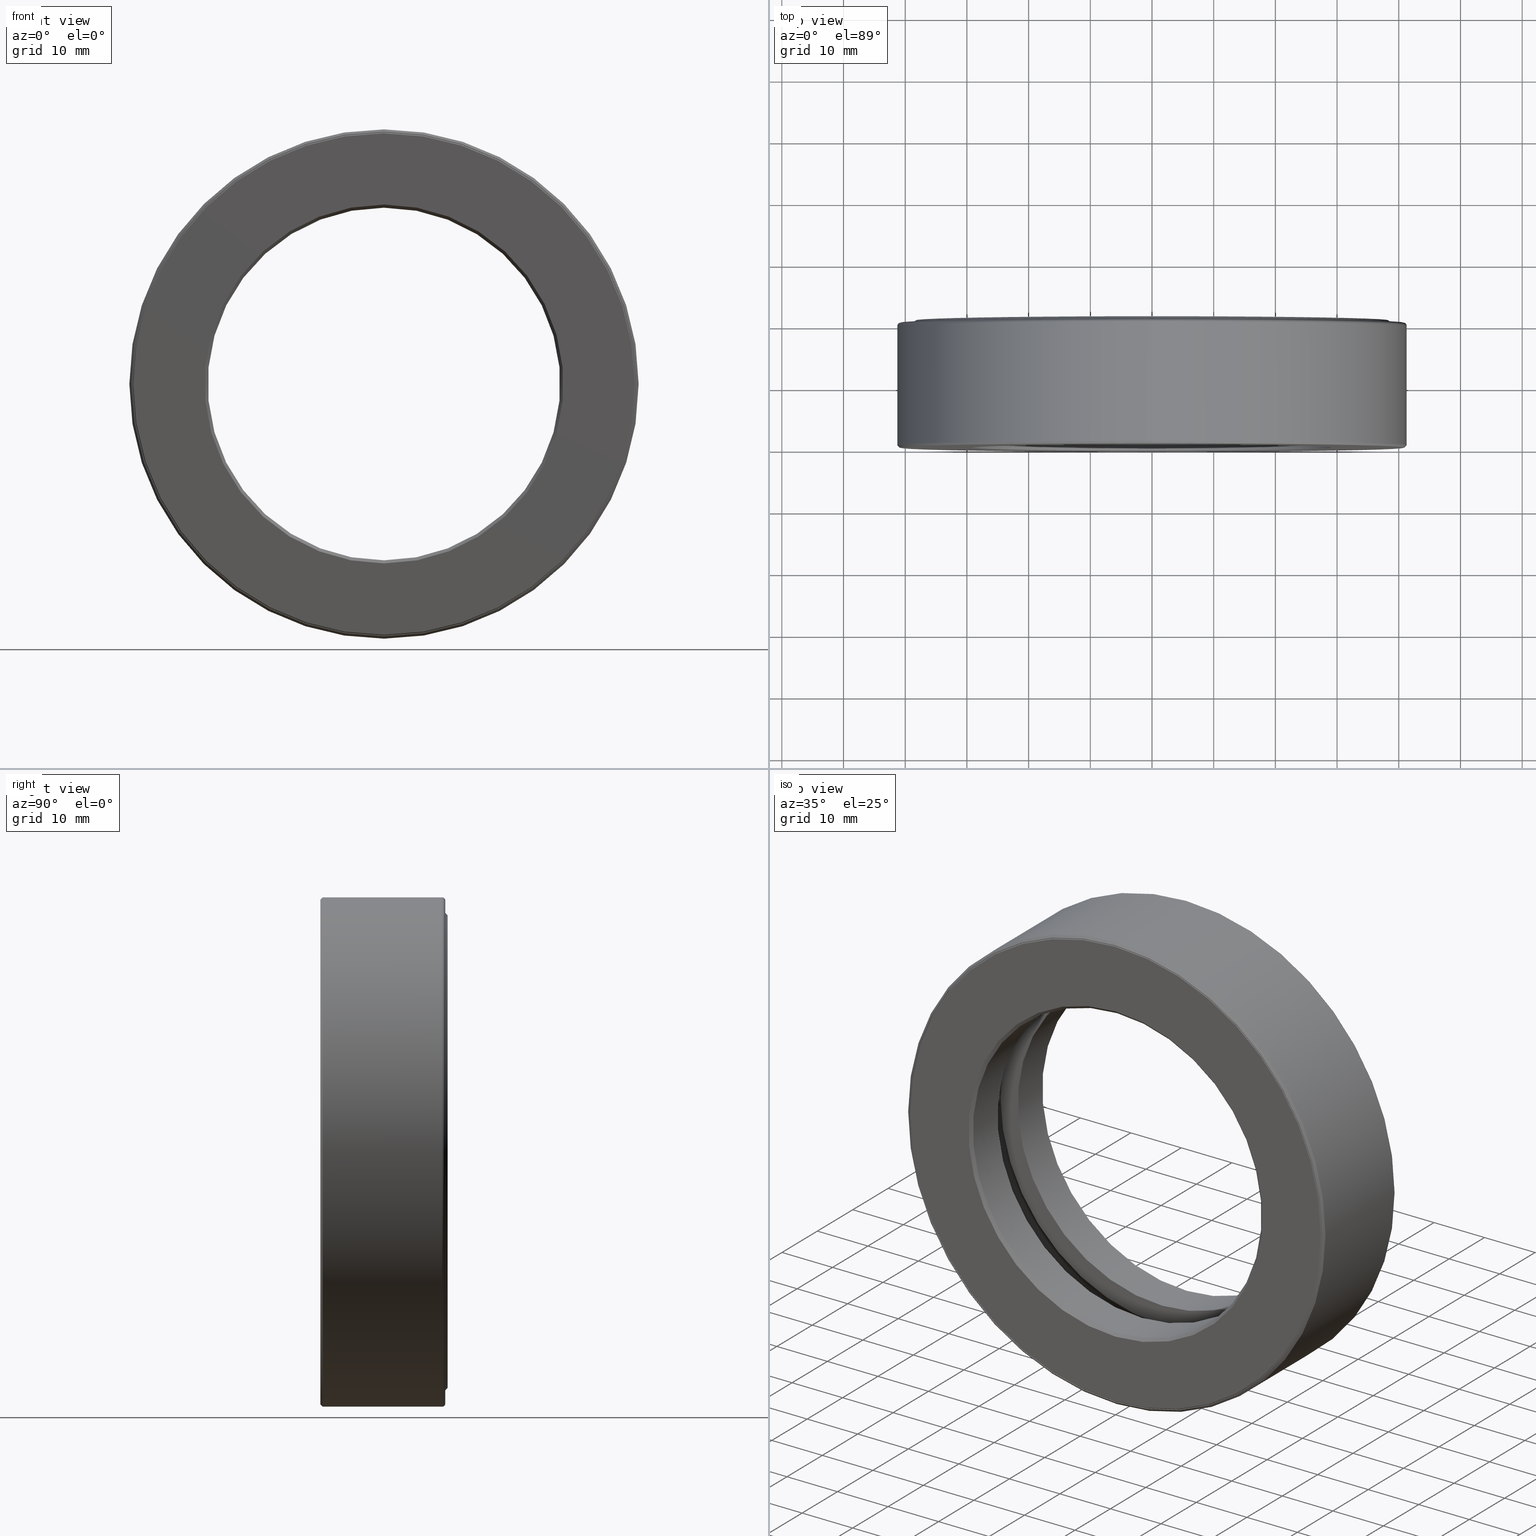
[diagram: canonical four-view strip — front | top / right | iso, engineering-drawing reading convention]
A machine part, canonical four-view strip (front | top / right | iso — engineering-drawing reading convention). The complete STEP part file that produces these views, byte-faithful:
ISO-10303-21;
HEADER;
FILE_DESCRIPTION (( 'STEP AP203' ),
    '1' );
FILE_NAME ('T-100-35.step',
    '2016-06-29T18:27:32',
    ( '' ),
    ( '' ),
    'SwSTEP 2.0',
    'SolidWorks 2016',
    '' );
FILE_SCHEMA (( 'CONFIG_CONTROL_DESIGN' ));
ENDSEC;

DATA;
#1 = DIRECTION ( 'NONE',  ( -0.0000000000000000000, 1.000000000000000000, -0.0000000000000000000 ) ) ;
#2 = CARTESIAN_POINT ( 'NONE',  ( 0.0000000000000000000, 0.7774999999999998600, 1.605000000000000000 ) ) ;
#3 = DIRECTION ( 'NONE',  ( -0.0000000000000000000, 1.000000000000000000, -0.0000000000000000000 ) ) ;
#4 = CC_DESIGN_APPROVAL ( #454, ( #123 ) ) ;
#5 = FACE_BOUND ( 'NONE', #363, .T. ) ;
#6 = CARTESIAN_POINT ( 'NONE',  ( 0.0000000000000000000, 0.7974999999999998800, 0.0000000000000000000 ) ) ;
#7 = FACE_BOUND ( 'NONE', #321, .T. ) ;
#8 = ORIENTED_EDGE ( 'NONE', *, *, #42, .F. ) ;
#9 = DIRECTION ( 'NONE',  ( -0.0000000000000000000, 1.000000000000000000, -0.0000000000000000000 ) ) ;
#10 = AXIS2_PLACEMENT_3D ( 'NONE', #455, #587, #229 ) ;
#11 = LOCAL_TIME ( 14, 27, 32.00000000000000000, #131 ) ;
#12 = CIRCLE ( 'NONE', #298, 1.545000000000000200 ) ;
#13 = FACE_OUTER_BOUND ( 'NONE', #119, .T. ) ;
#14 = ORIENTED_EDGE ( 'NONE', *, *, #275, .T. ) ;
#15 = AXIS2_PLACEMENT_3D ( 'NONE', #279, #506, #127 ) ;
#16 = DESIGN_CONTEXT ( 'detailed design', #518, 'design' ) ;
#17 = FACE_OUTER_BOUND ( 'NONE', #563, .T. ) ;
#18 = FACE_BOUND ( 'NONE', #251, .T. ) ;
#19 = AXIS2_PLACEMENT_3D ( 'NONE', #535, #496, #117 ) ;
#20 = ORIENTED_EDGE ( 'NONE', *, *, #260, .T. ) ;
#21 = ADVANCED_FACE ( 'NONE', ( #234, #305 ), #599, .T. ) ;
#22 = PERSON_AND_ORGANIZATION ( #97, #383 ) ;
#23 = DIRECTION ( 'NONE',  ( 0.0000000000000000000, 0.0000000000000000000, 1.000000000000000000 ) ) ;
#24 = UNCERTAINTY_MEASURE_WITH_UNIT (LENGTH_MEASURE( 1.000000000000000100E-005 ), #331, 'distance_accuracy_value', 'NONE');
#25 = PLANE ( 'NONE',  #476 ) ;
#26 = FACE_OUTER_BOUND ( 'NONE', #111, .T. ) ;
#27 = FACE_OUTER_BOUND ( 'NONE', #381, .T. ) ;
#28 = AXIS2_PLACEMENT_3D ( 'NONE', #151, #99, #430 ) ;
#29 = SPHERICAL_SURFACE ( 'NONE', #436, 0.1874999999999999700 ) ;
#30 = DIRECTION ( 'NONE',  ( -0.0000000000000000000, 1.000000000000000000, -0.0000000000000000000 ) ) ;
#31 = ORIENTED_EDGE ( 'NONE', *, *, #260, .F. ) ;
#32 = AXIS2_PLACEMENT_3D ( 'NONE', #280, #35, #181 ) ;
#33 = ADVANCED_FACE ( 'NONE', ( ), #153, .T. ) ;
#34 = FACE_OUTER_BOUND ( 'NONE', #473, .T. ) ;
#35 = DIRECTION ( 'NONE',  ( 0.0000000000000000000, 0.0000000000000000000, -1.000000000000000000 ) ) ;
#36 = CIRCLE ( 'NONE', #304, 1.610000000000000100 ) ;
#37 = PRODUCT_RELATED_PRODUCT_CATEGORY ( 'detail', '', ( #238 ) ) ;
#38 = EDGE_LOOP ( 'NONE', ( #198 ) ) ;
#39 = CARTESIAN_POINT ( 'NONE',  ( -1.010132666352421300E-032, -8.722717257869222100E-017, 0.0000000000000000000 ) ) ;
#40 = DIRECTION ( 'NONE',  ( 0.0000000000000000000, 0.0000000000000000000, 1.000000000000000000 ) ) ;
#41 = DIRECTION ( 'NONE',  ( 0.0000000000000000000, 0.0000000000000000000, 1.000000000000000000 ) ) ;
#42 = EDGE_CURVE ( 'NONE', #315, #315, #207, .T. ) ;
#43 = DIRECTION ( 'NONE',  ( -1.000000000000000000, 0.0000000000000000000, 3.491481338843131800E-015 ) ) ;
#44 = DIRECTION ( 'NONE',  ( 0.0000000000000000000, 0.0000000000000000000, 1.000000000000000000 ) ) ;
#45 = DIRECTION ( 'NONE',  ( 0.0000000000000000000, 0.0000000000000000000, 1.000000000000000000 ) ) ;
#46 = DATE_AND_TIME ( #572, #11 ) ;
#47 = APPLICATION_CONTEXT ( 'configuration controlled 3d designs of mechanical parts and assemblies' ) ;
#48 = EDGE_LOOP ( 'NONE', ( #235 ) ) ;
#49 = CARTESIAN_POINT ( 'NONE',  ( 0.0000000000000000000, 0.2937499999999999000, 0.0000000000000000000 ) ) ;
#50 = PERSON_AND_ORGANIZATION_ROLE ( 'design_supplier' ) ;
#51 = PLANE ( 'NONE',  #581 ) ;
#52 = AXIS2_PLACEMENT_3D ( 'NONE', #130, #406, #179 ) ;
#53 = DIRECTION ( 'NONE',  ( 0.0000000000000000000, 0.0000000000000000000, -1.000000000000000000 ) ) ;
#54 = FACE_OUTER_BOUND ( 'NONE', #237, .T. ) ;
#55 = DIRECTION ( 'NONE',  ( 0.0000000000000000000, -1.000000000000000000, 0.0000000000000000000 ) ) ;
#56 = EDGE_LOOP ( 'NONE', ( #296 ) ) ;
#57 = AXIS2_PLACEMENT_3D ( 'NONE', #265, #210, #213 ) ;
#58 = DATE_AND_TIME ( #524, #413 ) ;
#59 = CIRCLE ( 'NONE', #458, 1.258499999999999700 ) ;
#60 = CLOSED_SHELL ( 'NONE', ( #21, #405, #366, #118, #65, #589, #364, #577 ) ) ;
#61 = CONICAL_SURFACE ( 'NONE', #193, 1.610000000000000100, 0.7853981633974362900 ) ;
#62 = ORIENTED_EDGE ( 'NONE', *, *, #142, .F. ) ;
#63 = EDGE_LOOP ( 'NONE', ( #183 ) ) ;
#64 = AXIS2_PLACEMENT_3D ( 'NONE', #175, #418, #178 ) ;
#65 = ADVANCED_FACE ( 'NONE', ( #224, #69 ), #266, .F. ) ;
#66 = VERTEX_POINT ( 'NONE', #2 ) ;
#67 = ADVANCED_FACE ( 'NONE', ( ), #29, .T. ) ;
#68 = FACE_OUTER_BOUND ( 'NONE', #517, .T. ) ;
#69 = FACE_BOUND ( 'NONE', #596, .T. ) ;
#70 = DIRECTION ( 'NONE',  ( -0.0000000000000000000, 1.000000000000000000, -0.0000000000000000000 ) ) ;
#71 = ORIENTED_EDGE ( 'NONE', *, *, #571, .T. ) ;
#72 = CARTESIAN_POINT ( 'NONE',  ( 0.0000000000000000000, 0.4062499999999999400, 0.0000000000000000000 ) ) ;
#73 = CARTESIAN_POINT ( 'NONE',  ( 0.0000000000000000000, 0.01499999999999997700, 0.0000000000000000000 ) ) ;
#74 = FACE_BOUND ( 'NONE', #248, .T. ) ;
#75 = EDGE_CURVE ( 'NONE', #565, #565, #295, .T. ) ;
#76 = CARTESIAN_POINT ( 'NONE',  ( 0.0000000000000000000, 0.5187499999999999300, 0.0000000000000000000 ) ) ;
#77 = ORIENTED_EDGE ( 'NONE', *, *, #154, .F. ) ;
#78 = CARTESIAN_POINT ( 'NONE',  ( 0.0000000000000000000, 0.7774999999999998600, 1.625000000000000000 ) ) ;
#79 = AXIS2_PLACEMENT_3D ( 'NONE', #124, #600, #41 ) ;
#80 = CARTESIAN_POINT ( 'NONE',  ( 0.0000000000000000000, 0.7924999999999994300, 1.125000000000000200 ) ) ;
#81 = FACE_OUTER_BOUND ( 'NONE', #486, .T. ) ;
#82 = CARTESIAN_POINT ( 'NONE',  ( 0.0000000000000000000, 0.5187499999999999300, 1.558499999999999800 ) ) ;
#83 = FACE_OUTER_BOUND ( 'NONE', #215, .T. ) ;
#84 = CARTESIAN_POINT ( 'NONE',  ( 0.0000000000000000000, 0.5187499999999998200, 1.597999999999999600 ) ) ;
#85 = EDGE_LOOP ( 'NONE', ( #20 ) ) ;
#86 = CARTESIAN_POINT ( 'NONE',  ( 0.0000000000000000000, -8.750450604705842700E-017, 0.0000000000000000000 ) ) ;
#87 = AXIS2_PLACEMENT_3D ( 'NONE', #559, #55, #525 ) ;
#88 = CARTESIAN_POINT ( 'NONE',  ( 0.0000000000000000000, 0.02000000000000046900, 0.0000000000000000000 ) ) ;
#89 = VERTEX_POINT ( 'NONE', #82 ) ;
#90 = APPROVAL_ROLE ( '' ) ;
#91 = AXIS2_PLACEMENT_3D ( 'NONE', #414, #320, #324 ) ;
#92 = DIRECTION ( 'NONE',  ( -0.0000000000000000000, 1.000000000000000000, -0.0000000000000000000 ) ) ;
#93 = ORIENTED_EDGE ( 'NONE', *, *, #154, .T. ) ;
#94 =( NAMED_UNIT ( * ) PLANE_ANGLE_UNIT ( ) SI_UNIT ( $, .RADIAN. ) );
#95 = LOCAL_TIME ( 14, 27, 32.00000000000000000, #487 ) ;
#96 = PERSON_AND_ORGANIZATION_ROLE ( 'creator' ) ;
#97 = PERSON ( 'UNSPECIFIED', 'UNSPECIFIED', 'UNSPECIFIED', ('UNSPECIFIED'), ('UNSPECIFIED'), ('UNSPECIFIED') ) ;
#98 = AXIS2_PLACEMENT_3D ( 'NONE', #575, #498, #538 ) ;
#99 = DIRECTION ( 'NONE',  ( -0.0000000000000000000, 1.000000000000000000, -0.0000000000000000000 ) ) ;
#100 = VERTEX_POINT ( 'NONE', #270 ) ;
#101 = FACE_OUTER_BOUND ( 'NONE', #56, .T. ) ;
#102 = CARTESIAN_POINT ( 'NONE',  ( 0.0000000000000000000, 0.005000000000000418200, 0.0000000000000000000 ) ) ;
#103 = EDGE_LOOP ( 'NONE', ( #201 ) ) ;
#104 = CYLINDRICAL_SURFACE ( 'NONE', #384, 1.125000000000000200 ) ;
#105 = CIRCLE ( 'NONE', #470, 1.558499999999999800 ) ;
#106 = MANIFOLD_SOLID_BREP ( 'Revolve2[2]', #60 ) ;
#107 = EDGE_LOOP ( 'NONE', ( #523 ) ) ;
#108 = ORIENTED_EDGE ( 'NONE', *, *, #42, .T. ) ;
#109 = CALENDAR_DATE ( 2016, 29, 6 ) ;
#110 = CONICAL_SURFACE ( 'NONE', #389, 1.599999999999999600, 0.7853981633974335100 ) ;
#111 = EDGE_LOOP ( 'NONE', ( #605 ) ) ;
#112 = ORIENTED_EDGE ( 'NONE', *, *, #396, .T. ) ;
#113 = DIRECTION ( 'NONE',  ( -0.0000000000000000000, 1.000000000000000000, -0.0000000000000000000 ) ) ;
#114 = EDGE_CURVE ( 'NONE', #346, #346, #410, .T. ) ;
#115 = FACE_OUTER_BOUND ( 'NONE', #566, .T. ) ;
#116 = FACE_OUTER_BOUND ( 'NONE', #372, .T. ) ;
#117 = DIRECTION ( 'NONE',  ( 0.0000000000000000000, 0.0000000000000000000, 1.000000000000000000 ) ) ;
#118 = ADVANCED_FACE ( 'NONE', ( #301, #509 ), #516, .F. ) ;
#119 = EDGE_LOOP ( 'NONE', ( #449 ) ) ;
#120 = EDGE_LOOP ( 'NONE', ( #112 ) ) ;
#121 = ORIENTED_EDGE ( 'NONE', *, *, #162, .T. ) ;
#122 = ADVANCED_FACE ( 'NONE', ( #83, #344 ), #174, .F. ) ;
#123 = PRODUCT_DEFINITION_FORMATION_WITH_SPECIFIED_SOURCE ( 'ANY', '', #238, .NOT_KNOWN. ) ;
#124 = CARTESIAN_POINT ( 'NONE',  ( 0.0000000000000000000, 0.0000000000000000000, 0.0000000000000000000 ) ) ;
#125 = CARTESIAN_POINT ( 'NONE',  ( 4.917751465760552300E-015, 0.4062499999999999400, 1.408499999999999600 ) ) ;
#126 = DIRECTION ( 'NONE',  ( 0.0000000000000000000, 0.0000000000000000000, 1.000000000000000000 ) ) ;
#127 = DIRECTION ( 'NONE',  ( 0.0000000000000000000, 0.0000000000000000000, 1.000000000000000000 ) ) ;
#128 = CARTESIAN_POINT ( 'NONE',  ( 0.0000000000000000000, 0.7774999999999998600, 0.0000000000000000000 ) ) ;
#129 = EDGE_LOOP ( 'NONE', ( #173 ) ) ;
#130 = CARTESIAN_POINT ( 'NONE',  ( -8.969279409578135500E-016, 0.5187499999999999300, 0.0000000000000000000 ) ) ;
#131 = COORDINATED_UNIVERSAL_TIME_OFFSET ( 5, 0, .BEHIND. ) ;
#132 = CARTESIAN_POINT ( 'NONE',  ( 0.0000000000000000000, 0.7245000000000001400, 1.597999999999999600 ) ) ;
#133 = EDGE_CURVE ( 'NONE', #89, #89, #105, .T. ) ;
#134 = DIRECTION ( 'NONE',  ( -0.0000000000000000000, 1.000000000000000000, -0.0000000000000000000 ) ) ;
#135 = DIRECTION ( 'NONE',  ( -0.0000000000000000000, 1.000000000000000000, 0.0000000000000000000 ) ) ;
#136 = CARTESIAN_POINT ( 'NONE',  ( 0.0000000000000000000, 0.2937499999999999600, 0.0000000000000000000 ) ) ;
#137 = VERTEX_POINT ( 'NONE', #591 ) ;
#138 = CIRCLE ( 'NONE', #340, 1.597999999999999600 ) ;
#139 = DIRECTION ( 'NONE',  ( 0.0000000000000000000, 0.0000000000000000000, 1.000000000000000000 ) ) ;
#140 = EDGE_LOOP ( 'NONE', ( #247 ) ) ;
#141 = APPROVAL_ROLE ( '' ) ;
#142 = EDGE_CURVE ( 'NONE', #351, #351, #138, .T. ) ;
#143 = DIRECTION ( 'NONE',  ( -0.0000000000000000000, 1.000000000000000000, -0.0000000000000000000 ) ) ;
#144 = APPROVAL_ROLE ( '' ) ;
#145 = TOROIDAL_SURFACE ( 'NONE', #98, 1.605000000000000000, 0.02000000000000005900 ) ;
#146 = DIRECTION ( 'NONE',  ( 0.0000000000000000000, 0.0000000000000000000, 1.000000000000000000 ) ) ;
#147 = CARTESIAN_POINT ( 'NONE',  ( 0.0000000000000000000, 0.7774999999999998600, 1.545000000000000200 ) ) ;
#148 = FACE_OUTER_BOUND ( 'NONE', #411, .T. ) ;
#149 = ORIENTED_EDGE ( 'NONE', *, *, #501, .T. ) ;
#150 =( GEOMETRIC_REPRESENTATION_CONTEXT ( 3 ) GLOBAL_UNCERTAINTY_ASSIGNED_CONTEXT ( ( #24 ) ) GLOBAL_UNIT_ASSIGNED_CONTEXT ( ( #331, #94, #186 ) ) REPRESENTATION_CONTEXT ( 'NONE', 'WORKASPACE' ) );
#151 = CARTESIAN_POINT ( 'NONE',  ( 0.0000000000000000000, 0.7974999999999998800, 0.0000000000000000000 ) ) ;
#152 = FACE_OUTER_BOUND ( 'NONE', #129, .T. ) ;
#153 = SPHERICAL_SURFACE ( 'NONE', #212, 0.1874999999999999700 ) ;
#154 = EDGE_CURVE ( 'NONE', #333, #333, #353, .T. ) ;
#155 = EDGE_LOOP ( 'NONE', ( #510 ) ) ;
#156 = AXIS2_PLACEMENT_3D ( 'NONE', #161, #361, #584 ) ;
#157 = CIRCLE ( 'NONE', #28, 1.545000000000000200 ) ;
#158 = EDGE_LOOP ( 'NONE', ( #77 ) ) ;
#159 = AXIS2_PLACEMENT_3D ( 'NONE', #164, #573, #446 ) ;
#160 = PERSON_AND_ORGANIZATION ( #97, #383 ) ;
#161 = CARTESIAN_POINT ( 'NONE',  ( 0.0000000000000000000, 0.7924999999999994300, 0.0000000000000000000 ) ) ;
#162 = EDGE_CURVE ( 'NONE', #484, #484, #300, .T. ) ;
#163 = FACE_BOUND ( 'NONE', #574, .T. ) ;
#164 = CARTESIAN_POINT ( 'NONE',  ( 0.0000000000000000000, 0.8124999999999998900, 0.0000000000000000000 ) ) ;
#165 = EDGE_LOOP ( 'NONE', ( #362 ) ) ;
#166 = ADVANCED_FACE ( 'NONE', ( #116, #578 ), #255, .F. ) ;
#167 = DIRECTION ( 'NONE',  ( 0.0000000000000000000, -0.0000000000000000000, -1.000000000000000000 ) ) ;
#168 = ADVANCED_FACE ( 'NONE', ( #442, #561 ), #51, .F. ) ;
#169 = EDGE_CURVE ( 'NONE', #367, #367, #399, .T. ) ;
#170 = CYLINDRICAL_SURFACE ( 'NONE', #79, 1.597999999999999600 ) ;
#171 = DIRECTION ( 'NONE',  ( -0.0000000000000000000, 1.000000000000000000, -0.0000000000000000000 ) ) ;
#172 = DIRECTION ( 'NONE',  ( -0.0000000000000000000, 1.000000000000000000, -0.0000000000000000000 ) ) ;
#173 = ORIENTED_EDGE ( 'NONE', *, *, #133, .F. ) ;
#174 = PLANE ( 'NONE',  #490 ) ;
#175 = CARTESIAN_POINT ( 'NONE',  ( 0.0000000000000000000, -8.643737792453329500E-017, 0.0000000000000000000 ) ) ;
#176 = AXIS2_PLACEMENT_3D ( 'NONE', #368, #409, #318 ) ;
#177 = DATE_AND_TIME ( #109, #239 ) ;
#178 = DIRECTION ( 'NONE',  ( 0.0000000000000000000, 0.0000000000000000000, 1.000000000000000000 ) ) ;
#179 = DIRECTION ( 'NONE',  ( 0.0000000000000000000, -0.0000000000000000000, -1.000000000000000000 ) ) ;
#180 = CIRCLE ( 'NONE', #420, 1.605000000000000000 ) ;
#181 = DIRECTION ( 'NONE',  ( 1.000000000000000000, 0.0000000000000000000, 0.0000000000000000000 ) ) ;
#182 = DIRECTION ( 'NONE',  ( 6.982962677686263600E-015, -0.0000000000000000000, 1.000000000000000000 ) ) ;
#183 = ORIENTED_EDGE ( 'NONE', *, *, #162, .F. ) ;
#184 = APPROVAL_DATE_TIME ( #329, #426 ) ;
#185 = EDGE_CURVE ( 'NONE', #137, #137, #59, .T. ) ;
#186 =( NAMED_UNIT ( * ) SI_UNIT ( $, .STERADIAN. ) SOLID_ANGLE_UNIT ( ) );
#187 = DIRECTION ( 'NONE',  ( -0.0000000000000000000, 1.000000000000000000, -0.0000000000000000000 ) ) ;
#188 = EDGE_LOOP ( 'NONE', ( #306 ) ) ;
#189 = AXIS2_PLACEMENT_3D ( 'NONE', #537, #312, #167 ) ;
#190 = DIRECTION ( 'NONE',  ( 0.0000000000000000000, -1.000000000000000000, 0.0000000000000000000 ) ) ;
#191 = ORIENTED_EDGE ( 'NONE', *, *, #483, .F. ) ;
#192 = CARTESIAN_POINT ( 'NONE',  ( 0.0000000000000000000, -8.643737792453329500E-017, 0.0000000000000000000 ) ) ;
#193 = AXIS2_PLACEMENT_3D ( 'NONE', #548, #457, #126 ) ;
#194 = CARTESIAN_POINT ( 'NONE',  ( -4.132243084809358400E-032, 2.507751087933994500E-017, 0.0000000000000000000 ) ) ;
#195 = VERTEX_POINT ( 'NONE', #147 ) ;
#196 = CONICAL_SURFACE ( 'NONE', #159, 1.509999999999999800, 0.7853981633974498300 ) ;
#197 = EDGE_CURVE ( 'NONE', #408, #408, #36, .T. ) ;
#198 = ORIENTED_EDGE ( 'NONE', *, *, #185, .F. ) ;
#199 = CIRCLE ( 'NONE', #507, 1.258499999999999700 ) ;
#200 = ORIENTED_EDGE ( 'NONE', *, *, #404, .F. ) ;
#201 = ORIENTED_EDGE ( 'NONE', *, *, #185, .T. ) ;
#202 = AXIS2_PLACEMENT_3D ( 'NONE', #519, #182, #422 ) ;
#203 = AXIS2_PLACEMENT_3D ( 'NONE', #73, #113, #491 ) ;
#204 = FACE_OUTER_BOUND ( 'NONE', #158, .T. ) ;
#205 = CIRCLE ( 'NONE', #531, 1.605000000000000000 ) ;
#206 = CARTESIAN_POINT ( 'NONE',  ( 0.0000000000000000000, 0.0000000000000000000, 0.0000000000000000000 ) ) ;
#207 = CIRCLE ( 'NONE', #176, 1.125000000000000200 ) ;
#208 = DIRECTION ( 'NONE',  ( -0.0000000000000000000, 1.000000000000000000, -0.0000000000000000000 ) ) ;
#209 = LOCAL_TIME ( 14, 27, 32.00000000000000000, #303 ) ;
#210 = DIRECTION ( 'NONE',  ( -0.0000000000000000000, 1.000000000000000000, -0.0000000000000000000 ) ) ;
#211 = ADVANCED_FACE ( 'NONE', ( ), #469, .T. ) ;
#212 = AXIS2_PLACEMENT_3D ( 'NONE', #504, #376, #326 ) ;
#213 = DIRECTION ( 'NONE',  ( 0.0000000000000000000, 0.0000000000000000000, 1.000000000000000000 ) ) ;
#214 = TOROIDAL_SURFACE ( 'NONE', #244, 1.408499999999999600, 0.1875000000000000600 ) ;
#215 = EDGE_LOOP ( 'NONE', ( #355 ) ) ;
#216 = ORIENTED_EDGE ( 'NONE', *, *, #227, .T. ) ;
#217 = CARTESIAN_POINT ( 'NONE',  ( 0.0000000000000000000, 0.2937500000000000700, 1.125000000000000200 ) ) ;
#218 = ADVANCED_FACE ( 'NONE', ( #570, #148 ), #214, .F. ) ;
#219 = CARTESIAN_POINT ( 'NONE',  ( 0.0000000000000000000, -8.643737792453329500E-017, 1.599999999999999600 ) ) ;
#220 = AXIS2_PLACEMENT_3D ( 'NONE', #505, #135, #369 ) ;
#221 = VERTEX_POINT ( 'NONE', #588 ) ;
#222 = CARTESIAN_POINT ( 'NONE',  ( 0.0000000000000000000, 0.0000000000000000000, 0.0000000000000000000 ) ) ;
#223 = FACE_OUTER_BOUND ( 'NONE', #140, .T. ) ;
#224 = FACE_OUTER_BOUND ( 'NONE', #120, .T. ) ;
#225 = CARTESIAN_POINT ( 'NONE',  ( 0.0000000000000000000, 0.7924999999999994300, 0.0000000000000000000 ) ) ;
#226 = CARTESIAN_POINT ( 'NONE',  ( 0.0000000000000000000, -8.694983911032602800E-017, 1.605000000000000000 ) ) ;
#227 = EDGE_CURVE ( 'NONE', #390, #390, #347, .T. ) ;
#228 = CLOSED_SHELL ( 'NONE', ( #67 ) ) ;
#229 = DIRECTION ( 'NONE',  ( 0.0000000000000000000, 0.0000000000000000000, 1.000000000000000000 ) ) ;
#230 = CARTESIAN_POINT ( 'NONE',  ( 0.0000000000000000000, -8.750450604705842700E-017, 1.610000000000000100 ) ) ;
#231 = APPROVAL_STATUS ( 'not_yet_approved' ) ;
#232 = PLANE ( 'NONE',  #87 ) ;
#233 = SECURITY_CLASSIFICATION_LEVEL ( 'unclassified' ) ;
#234 = FACE_BOUND ( 'NONE', #155, .T. ) ;
#235 = ORIENTED_EDGE ( 'NONE', *, *, #571, .F. ) ;
#236 = CARTESIAN_POINT ( 'NONE',  ( 0.0000000000000000000, 0.02000000000000046900, 0.0000000000000000000 ) ) ;
#237 = EDGE_LOOP ( 'NONE', ( #216 ) ) ;
#238 = PRODUCT ( 'T-100-35', 'T-100-35', '', ( #555 ) ) ;
#239 = LOCAL_TIME ( 14, 27, 32.00000000000000000, #388 ) ;
#240 = EDGE_CURVE ( 'NONE', #341, #341, #534, .T. ) ;
#241 = DATE_TIME_ROLE ( 'classification_date' ) ;
#242 = DIRECTION ( 'NONE',  ( 0.0000000000000000000, 0.0000000000000000000, 1.000000000000000000 ) ) ;
#243 = VERTEX_POINT ( 'NONE', #226 ) ;
#244 = AXIS2_PLACEMENT_3D ( 'NONE', #289, #428, #378 ) ;
#245 = FACE_BOUND ( 'NONE', #401, .T. ) ;
#246 = PLANE ( 'NONE',  #292 ) ;
#247 = ORIENTED_EDGE ( 'NONE', *, *, #308, .T. ) ;
#248 = EDGE_LOOP ( 'NONE', ( #452 ) ) ;
#249 = FACE_OUTER_BOUND ( 'NONE', #107, .T. ) ;
#250 = FACE_OUTER_BOUND ( 'NONE', #274, .T. ) ;
#251 = EDGE_LOOP ( 'NONE', ( #200 ) ) ;
#252 = APPROVAL_PERSON_ORGANIZATION ( #435, #373, #141 ) ;
#253 = CC_DESIGN_PERSON_AND_ORGANIZATION_ASSIGNMENT ( #512, #521, ( #123 ) ) ;
#254 = CIRCLE ( 'NONE', #64, 1.599999999999999600 ) ;
#255 = CYLINDRICAL_SURFACE ( 'NONE', #269, 1.545000000000000200 ) ;
#256 = AXIS2_PLACEMENT_3D ( 'NONE', #550, #475, #336 ) ;
#257 = CLOSED_SHELL ( 'NONE', ( #211 ) ) ;
#258 = CARTESIAN_POINT ( 'NONE',  ( -2.254158281288996200E-016, 0.2937499999999999600, 0.0000000000000000000 ) ) ;
#259 = ADVANCED_FACE ( 'NONE', ( #264, #394 ), #110, .T. ) ;
#260 = EDGE_CURVE ( 'NONE', #243, #243, #180, .T. ) ;
#261 = DIRECTION ( 'NONE',  ( 0.0000000000000000000, 0.0000000000000000000, 1.000000000000000000 ) ) ;
#262 = ADVANCED_FACE ( 'NONE', ( #419, #163 ), #272, .F. ) ;
#263 = VERTEX_POINT ( 'NONE', #598 ) ;
#264 = FACE_OUTER_BOUND ( 'NONE', #558, .T. ) ;
#265 = CARTESIAN_POINT ( 'NONE',  ( 0.0000000000000000000, 0.8124999999999998900, 0.0000000000000000000 ) ) ;
#266 = CONICAL_SURFACE ( 'NONE', #286, 1.125000000000000200, 0.7853981633974415100 ) ;
#267 = ORIENTED_EDGE ( 'NONE', *, *, #483, .T. ) ;
#268 = ADVANCED_FACE ( 'NONE', ( #18, #460 ), #232, .F. ) ;
#269 = AXIS2_PLACEMENT_3D ( 'NONE', #222, #459, #281 ) ;
#270 = CARTESIAN_POINT ( 'NONE',  ( 0.0000000000000000000, 0.7974999999999998800, 1.545000000000000200 ) ) ;
#271 = CIRCLE ( 'NONE', #203, 1.624999999999999800 ) ;
#272 = CONICAL_SURFACE ( 'NONE', #444, 1.125000000000000000, 0.7853981633974482800 ) ;
#273 = DIRECTION ( 'NONE',  ( 0.0000000000000000000, 0.0000000000000000000, 1.000000000000000000 ) ) ;
#274 = EDGE_LOOP ( 'NONE', ( #284 ) ) ;
#275 = EDGE_CURVE ( 'NONE', #100, #100, #157, .T. ) ;
#276 = CARTESIAN_POINT ( 'NONE',  ( 0.0000000000000000000, 0.7245000000000001400, 0.0000000000000000000 ) ) ;
#277 = PERSON_AND_ORGANIZATION ( #97, #383 ) ;
#278 = DIMENSIONAL_EXPONENTS ( 1.000000000000000000, 0.0000000000000000000, 0.0000000000000000000, 0.0000000000000000000, 0.0000000000000000000, 0.0000000000000000000, 0.0000000000000000000 ) ;
#279 = CARTESIAN_POINT ( 'NONE',  ( 0.0000000000000000000, 0.7974999999999998800, 0.0000000000000000000 ) ) ;
#280 = CARTESIAN_POINT ( 'NONE',  ( -1.408499999999999600, 0.4062499999999999400, 0.0000000000000000000 ) ) ;
#281 = DIRECTION ( 'NONE',  ( 0.0000000000000000000, 0.0000000000000000000, 1.000000000000000000 ) ) ;
#282 = FACE_BOUND ( 'NONE', #499, .T. ) ;
#283 = CLOSED_SHELL ( 'NONE', ( #500 ) ) ;
#284 = ORIENTED_EDGE ( 'NONE', *, *, #75, .F. ) ;
#285 = APPLICATION_PROTOCOL_DEFINITION ( 'international standard', 'config_control_design', 1994, #47 ) ;
#286 = AXIS2_PLACEMENT_3D ( 'NONE', #225, #134, #511 ) ;
#287 = DIRECTION ( 'NONE',  ( 0.0000000000000000000, 0.0000000000000000000, 1.000000000000000000 ) ) ;
#288 = PERSON_AND_ORGANIZATION_ROLE ( 'classification_officer' ) ;
#289 = CARTESIAN_POINT ( 'NONE',  ( 0.0000000000000000000, 0.4062499999999999400, 0.0000000000000000000 ) ) ;
#290 = MANIFOLD_SOLID_BREP ( 'Revolve3', #283 ) ;
#291 = FACE_BOUND ( 'NONE', #434, .T. ) ;
#292 = AXIS2_PLACEMENT_3D ( 'NONE', #194, #343, #433 ) ;
#293 = DIRECTION ( 'NONE',  ( 0.0000000000000000000, 0.0000000000000000000, 1.000000000000000000 ) ) ;
#294 = APPLICATION_PROTOCOL_DEFINITION ( 'international standard', 'config_control_design', 1994, #518 ) ;
#295 = CIRCLE ( 'NONE', #601, 1.625000000000000000 ) ;
#296 = ORIENTED_EDGE ( 'NONE', *, *, #142, .T. ) ;
#297 = APPROVAL_DATE_TIME ( #58, #454 ) ;
#298 = AXIS2_PLACEMENT_3D ( 'NONE', #128, #464, #44 ) ;
#299 = MANIFOLD_SOLID_BREP ( 'BALLS[2]', #257 ) ;
#300 = CIRCLE ( 'NONE', #313, 1.145000000000000500 ) ;
#301 = FACE_OUTER_BOUND ( 'NONE', #540, .T. ) ;
#302 = ORIENTED_EDGE ( 'NONE', *, *, #227, .F. ) ;
#303 = COORDINATED_UNIVERSAL_TIME_OFFSET ( 5, 0, .BEHIND. ) ;
#304 = AXIS2_PLACEMENT_3D ( 'NONE', #86, #92, #424 ) ;
#305 = FACE_OUTER_BOUND ( 'NONE', #427, .T. ) ;
#306 = ORIENTED_EDGE ( 'NONE', *, *, #240, .F. ) ;
#307 = PERSON_AND_ORGANIZATION ( #97, #383 ) ;
#308 = EDGE_CURVE ( 'NONE', #221, #221, #205, .T. ) ;
#309 = AXIS2_PLACEMENT_3D ( 'NONE', #258, #314, #494 ) ;
#310 = DIRECTION ( 'NONE',  ( 0.0000000000000000000, 0.0000000000000000000, 1.000000000000000000 ) ) ;
#311 = DIRECTION ( 'NONE',  ( 0.0000000000000000000, 0.0000000000000000000, 1.000000000000000000 ) ) ;
#312 = DIRECTION ( 'NONE',  ( 0.0000000000000000000, -1.000000000000000000, 0.0000000000000000000 ) ) ;
#313 = AXIS2_PLACEMENT_3D ( 'NONE', #334, #477, #146 ) ;
#314 = DIRECTION ( 'NONE',  ( 0.0000000000000000000, -1.000000000000000000, 0.0000000000000000000 ) ) ;
#315 = VERTEX_POINT ( 'NONE', #217 ) ;
#316 = DIRECTION ( 'NONE',  ( -0.0000000000000000000, 1.000000000000000000, 0.0000000000000000000 ) ) ;
#317 = ORIENTED_EDGE ( 'NONE', *, *, #431, .F. ) ;
#318 = DIRECTION ( 'NONE',  ( 0.0000000000000000000, 0.0000000000000000000, 1.000000000000000000 ) ) ;
#319 = AXIS2_PLACEMENT_3D ( 'NONE', #536, #30, #310 ) ;
#320 = DIRECTION ( 'NONE',  ( -0.0000000000000000000, 1.000000000000000000, -0.0000000000000000000 ) ) ;
#321 = EDGE_LOOP ( 'NONE', ( #121 ) ) ;
#322 = CARTESIAN_POINT ( 'NONE',  ( 0.0000000000000000000, 0.5187499999999999300, 0.0000000000000000000 ) ) ;
#323 = CC_DESIGN_PERSON_AND_ORGANIZATION_ASSIGNMENT ( #453, #468, ( #238 ) ) ;
#324 = DIRECTION ( 'NONE',  ( 0.0000000000000000000, 0.0000000000000000000, 1.000000000000000000 ) ) ;
#325 = VERTEX_POINT ( 'NONE', #219 ) ;
#326 = DIRECTION ( 'NONE',  ( 1.047444401652939500E-014, 0.0000000000000000000, 1.000000000000000000 ) ) ;
#327 = CIRCLE ( 'NONE', #57, 1.145000000000000500 ) ;
#328 = AXIS2_PLACEMENT_3D ( 'NONE', #466, #338, #602 ) ;
#329 = DATE_AND_TIME ( #445, #209 ) ;
#330 = DIRECTION ( 'NONE',  ( 0.0000000000000000000, 0.0000000000000000000, 1.000000000000000000 ) ) ;
#331 =( CONVERSION_BASED_UNIT ( 'INCH', #529 ) LENGTH_UNIT ( ) NAMED_UNIT ( #278 ) );
#332 = CARTESIAN_POINT ( 'NONE',  ( 0.0000000000000000000, 0.5187499999999998200, 0.0000000000000000000 ) ) ;
#333 = VERTEX_POINT ( 'NONE', #541 ) ;
#334 = CARTESIAN_POINT ( 'NONE',  ( 0.0000000000000000000, 1.365923996832131600E-016, 0.0000000000000000000 ) ) ;
#335 = ORIENTED_EDGE ( 'NONE', *, *, #169, .T. ) ;
#336 = DIRECTION ( 'NONE',  ( 1.000000000000000000, 0.0000000000000000000, 0.0000000000000000000 ) ) ;
#337 = SECURITY_CLASSIFICATION ( '', '', #233 ) ;
#338 = DIRECTION ( 'NONE',  ( -0.0000000000000000000, 1.000000000000000000, -0.0000000000000000000 ) ) ;
#339 = DIRECTION ( 'NONE',  ( -0.0000000000000000000, 1.000000000000000000, -0.0000000000000000000 ) ) ;
#340 = AXIS2_PLACEMENT_3D ( 'NONE', #276, #593, #40 ) ;
#341 = VERTEX_POINT ( 'NONE', #374 ) ;
#342 = PRODUCT_DEFINITION ( 'UNKNOWN', '', #123, #16 ) ;
#343 = DIRECTION ( 'NONE',  ( -0.0000000000000000000, 1.000000000000000000, 0.0000000000000000000 ) ) ;
#344 = FACE_BOUND ( 'NONE', #85, .T. ) ;
#345 = ORIENTED_EDGE ( 'NONE', *, *, #380, .T. ) ;
#346 = VERTEX_POINT ( 'NONE', #508 ) ;
#347 = CIRCLE ( 'NONE', #328, 1.509999999999999800 ) ;
#348 = ORIENTED_EDGE ( 'NONE', *, *, #404, .T. ) ;
#349 = COORDINATED_UNIVERSAL_TIME_OFFSET ( 5, 0, .BEHIND. ) ;
#350 = AXIS2_PLACEMENT_3D ( 'NONE', #72, #208, #261 ) ;
#351 = VERTEX_POINT ( 'NONE', #132 ) ;
#352 = CC_DESIGN_PERSON_AND_ORGANIZATION_ASSIGNMENT ( #307, #96, ( #342 ) ) ;
#353 = CIRCLE ( 'NONE', #556, 1.605000000000000000 ) ;
#354 = ADVANCED_FACE ( 'NONE', ( #13, #7 ), #246, .F. ) ;
#355 = ORIENTED_EDGE ( 'NONE', *, *, #197, .F. ) ;
#356 = PLANE ( 'NONE',  #309 ) ;
#357 = APPROVAL_PERSON_ORGANIZATION ( #532, #426, #144 ) ;
#358 = DIRECTION ( 'NONE',  ( 0.0000000000000000000, 0.0000000000000000000, 1.000000000000000000 ) ) ;
#359 = ADVANCED_FACE ( 'NONE', ( #245, #594 ), #356, .F. ) ;
#360 = VERTEX_POINT ( 'NONE', #80 ) ;
#361 = DIRECTION ( 'NONE',  ( -0.0000000000000000000, 1.000000000000000000, -0.0000000000000000000 ) ) ;
#362 = ORIENTED_EDGE ( 'NONE', *, *, #114, .T. ) ;
#363 = EDGE_LOOP ( 'NONE', ( #585 ) ) ;
#364 = ADVANCED_FACE ( 'NONE', ( #101, #282 ), #196, .T. ) ;
#365 = DATE_AND_TIME ( #429, #95 ) ;
#366 = ADVANCED_FACE ( 'NONE', ( #391, #522 ), #533, .T. ) ;
#367 = VERTEX_POINT ( 'NONE', #84 ) ;
#368 = CARTESIAN_POINT ( 'NONE',  ( 0.0000000000000000000, 0.2937500000000000700, 0.0000000000000000000 ) ) ;
#369 = DIRECTION ( 'NONE',  ( 0.0000000000000000000, 0.0000000000000000000, 1.000000000000000000 ) ) ;
#370 = CIRCLE ( 'NONE', #19, 1.125000000000000200 ) ;
#371 = AXIS2_PLACEMENT_3D ( 'NONE', #332, #339, #293 ) ;
#372 = EDGE_LOOP ( 'NONE', ( #489 ) ) ;
#373 = APPROVAL ( #478, 'UNSPECIFIED' ) ;
#374 = CARTESIAN_POINT ( 'NONE',  ( 0.0000000000000000000, 0.02000000000000046900, 1.125000000000000000 ) ) ;
#375 = EDGE_LOOP ( 'NONE', ( #345 ) ) ;
#376 = DIRECTION ( 'NONE',  ( 1.000000000000000000, 0.0000000000000000000, -1.047444401652939500E-014 ) ) ;
#377 = CARTESIAN_POINT ( 'NONE',  ( 0.0000000000000000000, 0.7774999999999998600, 0.0000000000000000000 ) ) ;
#378 = DIRECTION ( 'NONE',  ( 0.0000000000000000000, 0.0000000000000000000, 1.000000000000000000 ) ) ;
#379 = TOROIDAL_SURFACE ( 'NONE', #350, 1.408499999999999600, 0.1874999999999999700 ) ;
#380 = EDGE_CURVE ( 'NONE', #423, #423, #370, .T. ) ;
#381 = EDGE_LOOP ( 'NONE', ( #31 ) ) ;
#382 = DIRECTION ( 'NONE',  ( 0.0000000000000000000, 0.0000000000000000000, 1.000000000000000000 ) ) ;
#383 = ORGANIZATION ( 'UNSPECIFIED', 'UNSPECIFIED', '' ) ;
#384 = AXIS2_PLACEMENT_3D ( 'NONE', #206, #70, #400 ) ;
#385 = CIRCLE ( 'NONE', #156, 1.125000000000000200 ) ;
#386 = EDGE_LOOP ( 'NONE', ( #108 ) ) ;
#387 = AXIS2_PLACEMENT_3D ( 'NONE', #397, #576, #23 ) ;
#388 = COORDINATED_UNIVERSAL_TIME_OFFSET ( 5, 0, .BEHIND. ) ;
#389 = AXIS2_PLACEMENT_3D ( 'NONE', #192, #474, #382 ) ;
#390 = VERTEX_POINT ( 'NONE', #462 ) ;
#391 = FACE_BOUND ( 'NONE', #375, .T. ) ;
#392 = ORIENTED_EDGE ( 'NONE', *, *, #564, .F. ) ;
#393 = CC_DESIGN_PERSON_AND_ORGANIZATION_ASSIGNMENT ( #277, #288, ( #337 ) ) ;
#394 = FACE_BOUND ( 'NONE', #580, .T. ) ;
#395 = ORIENTED_EDGE ( 'NONE', *, *, #380, .F. ) ;
#396 = EDGE_CURVE ( 'NONE', #569, #569, #327, .T. ) ;
#397 = CARTESIAN_POINT ( 'NONE',  ( 0.0000000000000000000, 0.2937499999999998400, 0.0000000000000000000 ) ) ;
#398 = AXIS2_PLACEMENT_3D ( 'NONE', #377, #172, #513 ) ;
#399 = CIRCLE ( 'NONE', #371, 1.597999999999999600 ) ;
#400 = DIRECTION ( 'NONE',  ( 0.0000000000000000000, 0.0000000000000000000, 1.000000000000000000 ) ) ;
#401 = EDGE_LOOP ( 'NONE', ( #8 ) ) ;
#402 = ADVANCED_FACE ( 'NONE', ( #27, #223 ), #497, .F. ) ;
#403 = SHAPE_DEFINITION_REPRESENTATION ( #514, #527 ) ;
#404 = EDGE_CURVE ( 'NONE', #467, #467, #551, .T. ) ;
#405 = ADVANCED_FACE ( 'NONE', ( #68, #152 ), #379, .F. ) ;
#406 = DIRECTION ( 'NONE',  ( 0.0000000000000000000, -1.000000000000000000, 0.0000000000000000000 ) ) ;
#407 = DIRECTION ( 'NONE',  ( -0.0000000000000000000, 1.000000000000000000, -0.0000000000000000000 ) ) ;
#408 = VERTEX_POINT ( 'NONE', #230 ) ;
#409 = DIRECTION ( 'NONE',  ( -0.0000000000000000000, 1.000000000000000000, -0.0000000000000000000 ) ) ;
#410 = CIRCLE ( 'NONE', #15, 1.605000000000000000 ) ;
#411 = EDGE_LOOP ( 'NONE', ( #348 ) ) ;
#412 = DIRECTION ( 'NONE',  ( -0.0000000000000000000, 1.000000000000000000, -0.0000000000000000000 ) ) ;
#413 = LOCAL_TIME ( 14, 27, 32.00000000000000000, #349 ) ;
#414 = CARTESIAN_POINT ( 'NONE',  ( 0.0000000000000000000, 0.0000000000000000000, 0.0000000000000000000 ) ) ;
#415 = CC_DESIGN_APPROVAL ( #426, ( #337 ) ) ;
#416 = CARTESIAN_POINT ( 'NONE',  ( 0.0000000000000000000, 0.8124999999999998900, 1.145000000000000500 ) ) ;
#417 = DIRECTION ( 'NONE',  ( -0.0000000000000000000, 1.000000000000000000, 0.0000000000000000000 ) ) ;
#418 = DIRECTION ( 'NONE',  ( -0.0000000000000000000, 1.000000000000000000, -0.0000000000000000000 ) ) ;
#419 = FACE_OUTER_BOUND ( 'NONE', #63, .T. ) ;
#420 = AXIS2_PLACEMENT_3D ( 'NONE', #554, #1, #330 ) ;
#421 = DIRECTION ( 'NONE',  ( 0.0000000000000000000, -0.0000000000000000000, -1.000000000000000000 ) ) ;
#422 = DIRECTION ( 'NONE',  ( -1.000000000000000000, 0.0000000000000000000, 6.982962677686263600E-015 ) ) ;
#423 = VERTEX_POINT ( 'NONE', #456 ) ;
#424 = DIRECTION ( 'NONE',  ( 0.0000000000000000000, 0.0000000000000000000, 1.000000000000000000 ) ) ;
#425 = DATE_TIME_ROLE ( 'creation_date' ) ;
#426 = APPROVAL ( #606, 'UNSPECIFIED' ) ;
#427 = EDGE_LOOP ( 'NONE', ( #528 ) ) ;
#428 = DIRECTION ( 'NONE',  ( -0.0000000000000000000, 1.000000000000000000, -0.0000000000000000000 ) ) ;
#429 = CALENDAR_DATE ( 2016, 29, 6 ) ;
#430 = DIRECTION ( 'NONE',  ( 0.0000000000000000000, 0.0000000000000000000, 1.000000000000000000 ) ) ;
#431 = EDGE_CURVE ( 'NONE', #263, #263, #271, .T. ) ;
#432 = CC_DESIGN_APPROVAL ( #373, ( #342 ) ) ;
#433 = DIRECTION ( 'NONE',  ( 0.0000000000000000000, 0.0000000000000000000, 1.000000000000000000 ) ) ;
#434 = EDGE_LOOP ( 'NONE', ( #480 ) ) ;
#435 = PERSON_AND_ORGANIZATION ( #97, #383 ) ;
#436 = AXIS2_PLACEMENT_3D ( 'NONE', #125, #43, #590 ) ;
#437 = CYLINDRICAL_SURFACE ( 'NONE', #91, 1.605000000000000000 ) ;
#438 = EDGE_LOOP ( 'NONE', ( #14 ) ) ;
#439 = ORIENTED_EDGE ( 'NONE', *, *, #308, .F. ) ;
#440 = AXIS2_PLACEMENT_3D ( 'NONE', #503, #579, #358 ) ;
#441 = CARTESIAN_POINT ( 'NONE',  ( 0.0000000000000000000, 0.7774999999999998600, 0.0000000000000000000 ) ) ;
#442 = FACE_BOUND ( 'NONE', #482, .T. ) ;
#443 = ADVANCED_FACE ( 'NONE', ( #250, #115 ), #448, .T. ) ;
#444 = AXIS2_PLACEMENT_3D ( 'NONE', #236, #190, #53 ) ;
#445 = CALENDAR_DATE ( 2016, 29, 6 ) ;
#446 = DIRECTION ( 'NONE',  ( 0.0000000000000000000, 0.0000000000000000000, -1.000000000000000000 ) ) ;
#447 = ADVANCED_FACE ( 'NONE', ( #249, #34 ), #145, .T. ) ;
#448 = CYLINDRICAL_SURFACE ( 'NONE', #440, 1.624999999999999800 ) ;
#449 = ORIENTED_EDGE ( 'NONE', *, *, #501, .F. ) ;
#450 = CARTESIAN_POINT ( 'NONE',  ( 0.0000000000000000000, 0.7774999999999998600, 0.0000000000000000000 ) ) ;
#451 = PLANE ( 'NONE',  #220 ) ;
#452 = ORIENTED_EDGE ( 'NONE', *, *, #549, .T. ) ;
#453 = PERSON_AND_ORGANIZATION ( #97, #383 ) ;
#454 = APPROVAL ( #231, 'UNSPECIFIED' ) ;
#455 = CARTESIAN_POINT ( 'NONE',  ( 0.0000000000000000000, 0.0000000000000000000, 0.0000000000000000000 ) ) ;
#456 = CARTESIAN_POINT ( 'NONE',  ( 0.0000000000000000000, 0.5187499999999998200, 1.125000000000000200 ) ) ;
#457 = DIRECTION ( 'NONE',  ( -0.0000000000000000000, 1.000000000000000000, -0.0000000000000000000 ) ) ;
#458 = AXIS2_PLACEMENT_3D ( 'NONE', #136, #143, #242 ) ;
#459 = DIRECTION ( 'NONE',  ( -0.0000000000000000000, 1.000000000000000000, -0.0000000000000000000 ) ) ;
#460 = FACE_OUTER_BOUND ( 'NONE', #471, .T. ) ;
#461 = CC_DESIGN_DATE_AND_TIME_ASSIGNMENT ( #177, #425, ( #342 ) ) ;
#462 = CARTESIAN_POINT ( 'NONE',  ( 0.0000000000000000000, 0.8124999999999998900, 1.509999999999999800 ) ) ;
#463 = ORIENTED_EDGE ( 'NONE', *, *, #75, .T. ) ;
#464 = DIRECTION ( 'NONE',  ( -0.0000000000000000000, 1.000000000000000000, -0.0000000000000000000 ) ) ;
#465 = DIRECTION ( 'NONE',  ( 0.0000000000000000000, -1.000000000000000000, 0.0000000000000000000 ) ) ;
#466 = CARTESIAN_POINT ( 'NONE',  ( 0.0000000000000000000, 0.8124999999999998900, 0.0000000000000000000 ) ) ;
#467 = VERTEX_POINT ( 'NONE', #546 ) ;
#468 = PERSON_AND_ORGANIZATION_ROLE ( 'design_owner' ) ;
#469 = SPHERICAL_SURFACE ( 'NONE', #202, 0.1874999999999999700 ) ;
#470 = AXIS2_PLACEMENT_3D ( 'NONE', #322, #412, #597 ) ;
#471 = EDGE_LOOP ( 'NONE', ( #93 ) ) ;
#472 =( LENGTH_UNIT ( ) NAMED_UNIT ( * ) SI_UNIT ( $, .METRE. ) );
#473 = EDGE_LOOP ( 'NONE', ( #463 ) ) ;
#474 = DIRECTION ( 'NONE',  ( -0.0000000000000000000, 1.000000000000000000, -0.0000000000000000000 ) ) ;
#475 = DIRECTION ( 'NONE',  ( 0.0000000000000000000, 0.0000000000000000000, 1.000000000000000000 ) ) ;
#476 = AXIS2_PLACEMENT_3D ( 'NONE', #441, #316, #311 ) ;
#477 = DIRECTION ( 'NONE',  ( -0.0000000000000000000, 1.000000000000000000, -0.0000000000000000000 ) ) ;
#478 = APPROVAL_STATUS ( 'not_yet_approved' ) ;
#479 = SPHERICAL_SURFACE ( 'NONE', #32, 0.1874999999999999700 ) ;
#480 = ORIENTED_EDGE ( 'NONE', *, *, #396, .F. ) ;
#481 = DIRECTION ( 'NONE',  ( 0.0000000000000000000, 0.0000000000000000000, 1.000000000000000000 ) ) ;
#482 = EDGE_LOOP ( 'NONE', ( #567 ) ) ;
#483 = EDGE_CURVE ( 'NONE', #360, #360, #385, .T. ) ;
#484 = VERTEX_POINT ( 'NONE', #595 ) ;
#485 = CLOSED_SHELL ( 'NONE', ( #33 ) ) ;
#486 = EDGE_LOOP ( 'NONE', ( #392 ) ) ;
#487 = COORDINATED_UNIVERSAL_TIME_OFFSET ( 5, 0, .BEHIND. ) ;
#488 = MANIFOLD_SOLID_BREP ( 'BALLS[3]', #485 ) ;
#489 = ORIENTED_EDGE ( 'NONE', *, *, #549, .F. ) ;
#490 = AXIS2_PLACEMENT_3D ( 'NONE', #39, #417, #552 ) ;
#491 = DIRECTION ( 'NONE',  ( 0.0000000000000000000, 0.0000000000000000000, 1.000000000000000000 ) ) ;
#492 = CC_DESIGN_PERSON_AND_ORGANIZATION_ASSIGNMENT ( #160, #50, ( #123 ) ) ;
#493 = ADVANCED_FACE ( 'NONE', ( #81, #74 ), #25, .F. ) ;
#494 = DIRECTION ( 'NONE',  ( 0.0000000000000000000, -0.0000000000000000000, -1.000000000000000000 ) ) ;
#495 = ADVANCED_FACE ( 'NONE', ( #515, #520 ), #104, .F. ) ;
#496 = DIRECTION ( 'NONE',  ( -0.0000000000000000000, 1.000000000000000000, -0.0000000000000000000 ) ) ;
#497 = CYLINDRICAL_SURFACE ( 'NONE', #319, 1.605000000000000000 ) ;
#498 = DIRECTION ( 'NONE',  ( -0.0000000000000000000, 1.000000000000000000, -0.0000000000000000000 ) ) ;
#499 = EDGE_LOOP ( 'NONE', ( #302 ) ) ;
#500 = ADVANCED_FACE ( 'NONE', ( ), #479, .T. ) ;
#501 = EDGE_CURVE ( 'NONE', #325, #325, #254, .T. ) ;
#502 = CLOSED_SHELL ( 'NONE', ( #218, #268, #539, #493, #166, #168, #447, #443, #583, #122, #402, #259, #354, #262, #495, #359 ) ) ;
#503 = CARTESIAN_POINT ( 'NONE',  ( 0.0000000000000000000, 0.0000000000000000000, 0.0000000000000000000 ) ) ;
#504 = CARTESIAN_POINT ( 'NONE',  ( -1.475325439728165900E-014, 0.4062499999999999400, -1.408499999999999600 ) ) ;
#505 = CARTESIAN_POINT ( 'NONE',  ( 0.0000000000000000000, 0.8124999999999998900, 0.0000000000000000000 ) ) ;
#506 = DIRECTION ( 'NONE',  ( -0.0000000000000000000, 1.000000000000000000, -0.0000000000000000000 ) ) ;
#507 = AXIS2_PLACEMENT_3D ( 'NONE', #76, #407, #273 ) ;
#508 = CARTESIAN_POINT ( 'NONE',  ( 0.0000000000000000000, 0.7974999999999998800, 1.605000000000000000 ) ) ;
#509 = FACE_OUTER_BOUND ( 'NONE', #530, .T. ) ;
#510 = ORIENTED_EDGE ( 'NONE', *, *, #133, .T. ) ;
#511 = DIRECTION ( 'NONE',  ( 0.0000000000000000000, 0.0000000000000000000, 1.000000000000000000 ) ) ;
#512 = PERSON_AND_ORGANIZATION ( #97, #383 ) ;
#513 = DIRECTION ( 'NONE',  ( 0.0000000000000000000, 0.0000000000000000000, 1.000000000000000000 ) ) ;
#514 = PRODUCT_DEFINITION_SHAPE ( 'NONE', 'NONE',  #342 ) ;
#515 = FACE_OUTER_BOUND ( 'NONE', #188, .T. ) ;
#516 = CYLINDRICAL_SURFACE ( 'NONE', #10, 1.125000000000000200 ) ;
#517 = EDGE_LOOP ( 'NONE', ( #71 ) ) ;
#518 = APPLICATION_CONTEXT ( 'configuration controlled 3d designs of mechanical parts and assemblies' ) ;
#519 = CARTESIAN_POINT ( 'NONE',  ( 1.408499999999999600, 0.4062499999999999400, -9.835502931521104500E-015 ) ) ;
#520 = FACE_OUTER_BOUND ( 'NONE', #386, .T. ) ;
#521 = PERSON_AND_ORGANIZATION_ROLE ( 'creator' ) ;
#522 = FACE_OUTER_BOUND ( 'NONE', #48, .T. ) ;
#523 = ORIENTED_EDGE ( 'NONE', *, *, #114, .F. ) ;
#524 = CALENDAR_DATE ( 2016, 29, 6 ) ;
#525 = DIRECTION ( 'NONE',  ( 0.0000000000000000000, -0.0000000000000000000, -1.000000000000000000 ) ) ;
#526 = AXIS2_PLACEMENT_3D ( 'NONE', #88, #187, #139 ) ;
#527 = ADVANCED_BREP_SHAPE_REPRESENTATION ( 'T-100-35', ( #547, #106, #290, #562, #299, #488, #256 ), #150 ) ;
#528 = ORIENTED_EDGE ( 'NONE', *, *, #169, .F. ) ;
#529 = LENGTH_MEASURE_WITH_UNIT ( LENGTH_MEASURE( 0.02539999999999999900 ), #472 );
#530 = EDGE_LOOP ( 'NONE', ( #395 ) ) ;
#531 = AXIS2_PLACEMENT_3D ( 'NONE', #102, #9, #481 ) ;
#532 = PERSON_AND_ORGANIZATION ( #97, #383 ) ;
#533 = PLANE ( 'NONE',  #189 ) ;
#534 = CIRCLE ( 'NONE', #526, 1.125000000000000000 ) ;
#535 = CARTESIAN_POINT ( 'NONE',  ( 0.0000000000000000000, 0.5187499999999998200, 0.0000000000000000000 ) ) ;
#536 = CARTESIAN_POINT ( 'NONE',  ( 0.0000000000000000000, 0.0000000000000000000, 0.0000000000000000000 ) ) ;
#537 = CARTESIAN_POINT ( 'NONE',  ( 2.653831735418238500E-016, 0.5187499999999999300, 0.0000000000000000000 ) ) ;
#538 = DIRECTION ( 'NONE',  ( 0.0000000000000000000, 0.0000000000000000000, 1.000000000000000000 ) ) ;
#539 = ADVANCED_FACE ( 'NONE', ( #204, #26 ), #437, .F. ) ;
#540 = EDGE_LOOP ( 'NONE', ( #267 ) ) ;
#541 = CARTESIAN_POINT ( 'NONE',  ( 0.0000000000000000000, 0.2937499999999999000, 1.605000000000000000 ) ) ;
#542 = EDGE_LOOP ( 'NONE', ( #335 ) ) ;
#543 = CC_DESIGN_SECURITY_CLASSIFICATION ( #337, ( #123 ) ) ;
#544 = ORIENTED_EDGE ( 'NONE', *, *, #431, .T. ) ;
#545 = APPROVAL_DATE_TIME ( #365, #373 ) ;
#546 = CARTESIAN_POINT ( 'NONE',  ( 0.0000000000000000000, 0.2937499999999998400, 1.558499999999999800 ) ) ;
#547 = MANIFOLD_SOLID_BREP ( 'Revolve2[1]', #502 ) ;
#548 = CARTESIAN_POINT ( 'NONE',  ( 0.0000000000000000000, -8.750450604705842700E-017, 0.0000000000000000000 ) ) ;
#549 = EDGE_CURVE ( 'NONE', #195, #195, #12, .T. ) ;
#550 = CARTESIAN_POINT ( 'NONE',  ( 0.0000000000000000000, 0.0000000000000000000, 0.0000000000000000000 ) ) ;
#551 = CIRCLE ( 'NONE', #387, 1.558499999999999800 ) ;
#552 = DIRECTION ( 'NONE',  ( 0.0000000000000000000, 0.0000000000000000000, 1.000000000000000000 ) ) ;
#553 = EDGE_LOOP ( 'NONE', ( #317 ) ) ;
#554 = CARTESIAN_POINT ( 'NONE',  ( 0.0000000000000000000, -8.694983911032602800E-017, 0.0000000000000000000 ) ) ;
#555 = MECHANICAL_CONTEXT ( 'NONE', #47, 'mechanical' ) ;
#556 = AXIS2_PLACEMENT_3D ( 'NONE', #49, #3, #287 ) ;
#557 = CIRCLE ( 'NONE', #398, 1.605000000000000000 ) ;
#558 = EDGE_LOOP ( 'NONE', ( #439 ) ) ;
#559 = CARTESIAN_POINT ( 'NONE',  ( 2.157205236932460800E-016, 0.2937499999999999000, 0.0000000000000000000 ) ) ;
#560 = VERTEX_POINT ( 'NONE', #604 ) ;
#561 = FACE_OUTER_BOUND ( 'NONE', #165, .T. ) ;
#562 = MANIFOLD_SOLID_BREP ( 'BALLS[1]', #228 ) ;
#563 = EDGE_LOOP ( 'NONE', ( #62 ) ) ;
#564 = EDGE_CURVE ( 'NONE', #66, #66, #557, .T. ) ;
#565 = VERTEX_POINT ( 'NONE', #78 ) ;
#566 = EDGE_LOOP ( 'NONE', ( #544 ) ) ;
#567 = ORIENTED_EDGE ( 'NONE', *, *, #275, .F. ) ;
#568 = CC_DESIGN_DATE_AND_TIME_ASSIGNMENT ( #46, #241, ( #337 ) ) ;
#569 = VERTEX_POINT ( 'NONE', #416 ) ;
#570 = FACE_OUTER_BOUND ( 'NONE', #38, .T. ) ;
#571 = EDGE_CURVE ( 'NONE', #560, #560, #199, .T. ) ;
#572 = CALENDAR_DATE ( 2016, 29, 6 ) ;
#573 = DIRECTION ( 'NONE',  ( 0.0000000000000000000, -1.000000000000000000, 0.0000000000000000000 ) ) ;
#574 = EDGE_LOOP ( 'NONE', ( #582 ) ) ;
#575 = CARTESIAN_POINT ( 'NONE',  ( 0.0000000000000000000, 0.7774999999999998600, 0.0000000000000000000 ) ) ;
#576 = DIRECTION ( 'NONE',  ( -0.0000000000000000000, 1.000000000000000000, -0.0000000000000000000 ) ) ;
#577 = ADVANCED_FACE ( 'NONE', ( #603, #17 ), #170, .T. ) ;
#578 = FACE_OUTER_BOUND ( 'NONE', #438, .T. ) ;
#579 = DIRECTION ( 'NONE',  ( -0.0000000000000000000, 1.000000000000000000, -0.0000000000000000000 ) ) ;
#580 = EDGE_LOOP ( 'NONE', ( #149 ) ) ;
#581 = AXIS2_PLACEMENT_3D ( 'NONE', #6, #465, #421 ) ;
#582 = ORIENTED_EDGE ( 'NONE', *, *, #240, .T. ) ;
#583 = ADVANCED_FACE ( 'NONE', ( #592, #5 ), #61, .T. ) ;
#584 = DIRECTION ( 'NONE',  ( 0.0000000000000000000, 0.0000000000000000000, 1.000000000000000000 ) ) ;
#585 = ORIENTED_EDGE ( 'NONE', *, *, #197, .T. ) ;
#586 = APPROVAL_PERSON_ORGANIZATION ( #22, #454, #90 ) ;
#587 = DIRECTION ( 'NONE',  ( -0.0000000000000000000, 1.000000000000000000, -0.0000000000000000000 ) ) ;
#588 = CARTESIAN_POINT ( 'NONE',  ( 0.0000000000000000000, 0.005000000000000418200, 1.605000000000000000 ) ) ;
#589 = ADVANCED_FACE ( 'NONE', ( #54, #291 ), #451, .T. ) ;
#590 = DIRECTION ( 'NONE',  ( -3.491481338843131800E-015, 0.0000000000000000000, -1.000000000000000000 ) ) ;
#591 = CARTESIAN_POINT ( 'NONE',  ( 0.0000000000000000000, 0.2937499999999999600, 1.258499999999999700 ) ) ;
#592 = FACE_OUTER_BOUND ( 'NONE', #553, .T. ) ;
#593 = DIRECTION ( 'NONE',  ( -0.0000000000000000000, 1.000000000000000000, -0.0000000000000000000 ) ) ;
#594 = FACE_OUTER_BOUND ( 'NONE', #103, .T. ) ;
#595 = CARTESIAN_POINT ( 'NONE',  ( 0.0000000000000000000, 1.365923996832131600E-016, 1.145000000000000500 ) ) ;
#596 = EDGE_LOOP ( 'NONE', ( #191 ) ) ;
#597 = DIRECTION ( 'NONE',  ( 0.0000000000000000000, 0.0000000000000000000, 1.000000000000000000 ) ) ;
#598 = CARTESIAN_POINT ( 'NONE',  ( 0.0000000000000000000, 0.01499999999999997700, 1.624999999999999800 ) ) ;
#599 = PLANE ( 'NONE',  #52 ) ;
#600 = DIRECTION ( 'NONE',  ( -0.0000000000000000000, 1.000000000000000000, -0.0000000000000000000 ) ) ;
#601 = AXIS2_PLACEMENT_3D ( 'NONE', #450, #171, #45 ) ;
#602 = DIRECTION ( 'NONE',  ( 0.0000000000000000000, 0.0000000000000000000, 1.000000000000000000 ) ) ;
#603 = FACE_OUTER_BOUND ( 'NONE', #542, .T. ) ;
#604 = CARTESIAN_POINT ( 'NONE',  ( 0.0000000000000000000, 0.5187499999999999300, 1.258499999999999700 ) ) ;
#605 = ORIENTED_EDGE ( 'NONE', *, *, #564, .T. ) ;
#606 = APPROVAL_STATUS ( 'not_yet_approved' ) ;
ENDSEC;
END-ISO-10303-21;
